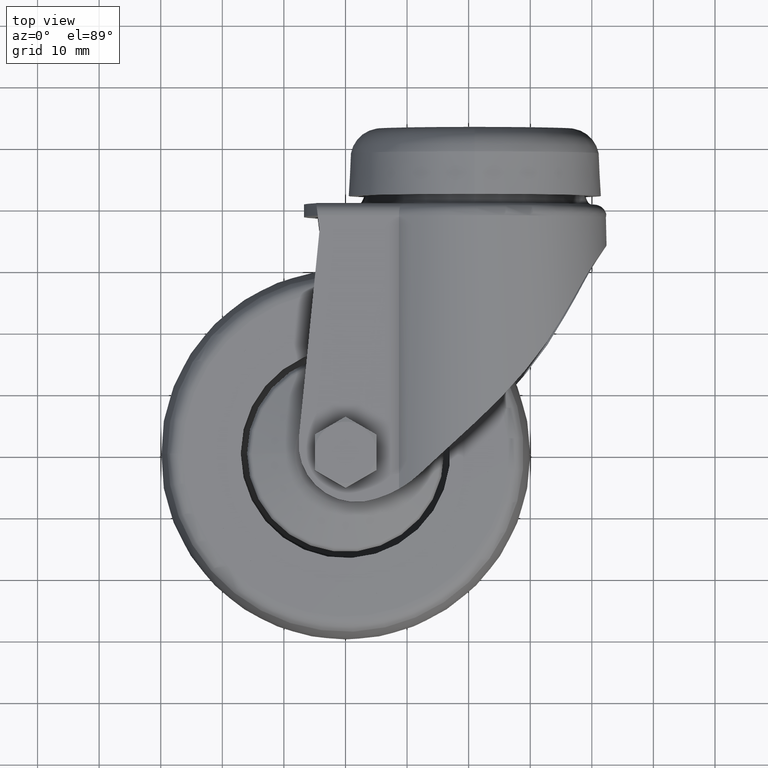
[diagram: clean part render]
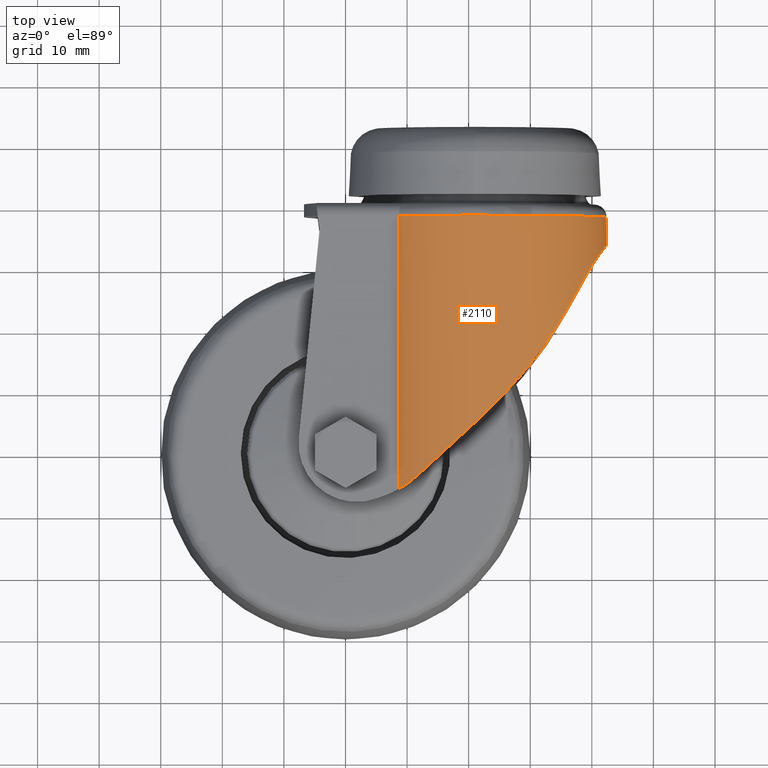
[diagram: same view with one face highlighted and labeled with its STEP entity id]
A machine part, top view. The second image highlights one B-rep face of the part: STEP entity #2110.
In plain terms, the highlighted cylindrical surface (partial cylindrical patch) has radius 21.4 mm, axis along (0, 1, 0).
Its self-contained STEP definition (entity closure, byte-faithful):
#95=B_SPLINE_CURVE_WITH_KNOTS('',3,(#3758,#3759,#3760,#3761,#3762,#3763),
 .UNSPECIFIED.,.F.,.F.,(4,2,4),(13.159844562633,13.4673430637758,13.5940150541352),
 .UNSPECIFIED.);
#96=B_SPLINE_CURVE_WITH_KNOTS('',3,(#3767,#3768,#3769,#3770,#3771,#3772),
 .UNSPECIFIED.,.F.,.F.,(4,2,4),(2.01422650775472,2.14089849811414,2.44839699925693),
 .UNSPECIFIED.);
#97=B_SPLINE_CURVE_WITH_KNOTS('',3,(#3796,#3797,#3798,#3799,#3800,#3801,
#3802,#3803),.UNSPECIFIED.,.F.,.F.,(4,2,2,4),(-5.30347207072453,-4.9293406964615,
-4.24946992960912,-3.58438395109433),.UNSPECIFIED.);
#98=B_SPLINE_CURVE_WITH_KNOTS('',3,(#3805,#3806,#3807,#3808,#3809,#3810),
 .UNSPECIFIED.,.F.,.F.,(4,2,4),(-6.02019847097043,-4.8982829966699,-4.7622575854947),
 .UNSPECIFIED.);
#99=B_SPLINE_CURVE_WITH_KNOTS('',3,(#3812,#3813,#3814,#3815,#3816,#3817,
#3818,#3819,#3820,#3821,#3822,#3823,#3824,#3825),.UNSPECIFIED.,.F.,.F.,
(4,2,2,2,2,2,4),(-7.655631086912,-7.2114884404188,-6.74464892293105,-6.27780940544331,
-5.81096988795556,-5.34413037046781,-4.89998772397461),.UNSPECIFIED.);
#100=B_SPLINE_CURVE_WITH_KNOTS('',3,(#3827,#3828,#3829,#3830,#3831,#3832),
 .UNSPECIFIED.,.F.,.F.,(4,2,4),(-10.1889680806466,-10.0529426694714,-8.93102719517088),
 .UNSPECIFIED.);
#101=B_SPLINE_CURVE_WITH_KNOTS('',3,(#3833,#3834,#3835,#3836,#3837,#3838,
#3839,#3840),.UNSPECIFIED.,.F.,.F.,(4,2,2,4),(-12.802361108636,-12.1372751301213,
-11.4574043632689,-11.0832729890058),.UNSPECIFIED.);
#114=ELLIPSE('',#2552,29.051900894958,21.4);
#115=ELLIPSE('',#2556,29.051900894958,21.4);
#150=CYLINDRICAL_SURFACE('',#2557,21.4);
#319=FACE_OUTER_BOUND('',#476,.T.);
#476=EDGE_LOOP('',(#1561,#1562,#1563,#1564,#1565,#1566,#1567,#1568,#1569,
#1570,#1571,#1572));
#613=LINE('',#3642,#692);
#629=LINE('',#3793,#708);
#692=VECTOR('',#2942,1000.);
#708=VECTOR('',#3012,1000.);
#812=CIRCLE('',#2558,21.4);
#943=VERTEX_POINT('',#3639);
#944=VERTEX_POINT('',#3641);
#971=VERTEX_POINT('',#3756);
#972=VERTEX_POINT('',#3765);
#973=VERTEX_POINT('',#3766);
#976=VERTEX_POINT('',#3780);
#978=VERTEX_POINT('',#3788);
#979=VERTEX_POINT('',#3792);
#980=VERTEX_POINT('',#3795);
#981=VERTEX_POINT('',#3804);
#982=VERTEX_POINT('',#3811);
#983=VERTEX_POINT('',#3826);
#1150=EDGE_CURVE('',#943,#944,#613,.F.);
#1182=EDGE_CURVE('',#971,#943,#95,.T.);
#1183=EDGE_CURVE('',#972,#973,#96,.T.);
#1189=EDGE_CURVE('',#976,#973,#114,.F.);
#1193=EDGE_CURVE('',#971,#978,#115,.F.);
#1194=EDGE_CURVE('',#979,#972,#629,.T.);
#1195=EDGE_CURVE('',#979,#944,#812,.T.);
#1196=EDGE_CURVE('',#980,#978,#97,.T.);
#1197=EDGE_CURVE('',#981,#980,#98,.T.);
#1198=EDGE_CURVE('',#981,#982,#99,.T.);
#1199=EDGE_CURVE('',#983,#982,#100,.T.);
#1200=EDGE_CURVE('',#976,#983,#101,.T.);
#1561=ORIENTED_EDGE('',*,*,#1194,.F.);
#1562=ORIENTED_EDGE('',*,*,#1195,.T.);
#1563=ORIENTED_EDGE('',*,*,#1150,.F.);
#1564=ORIENTED_EDGE('',*,*,#1182,.F.);
#1565=ORIENTED_EDGE('',*,*,#1193,.T.);
#1566=ORIENTED_EDGE('',*,*,#1196,.F.);
#1567=ORIENTED_EDGE('',*,*,#1197,.F.);
#1568=ORIENTED_EDGE('',*,*,#1198,.T.);
#1569=ORIENTED_EDGE('',*,*,#1199,.F.);
#1570=ORIENTED_EDGE('',*,*,#1200,.F.);
#1571=ORIENTED_EDGE('',*,*,#1189,.T.);
#1572=ORIENTED_EDGE('',*,*,#1183,.F.);
#2110=ADVANCED_FACE('',(#319),#150,.T.);
#2552=AXIS2_PLACEMENT_3D('',#3782,#2998,#2999);
#2556=AXIS2_PLACEMENT_3D('',#3790,#3008,#3009);
#2557=AXIS2_PLACEMENT_3D('',#3791,#3010,#3011);
#2558=AXIS2_PLACEMENT_3D('',#3794,#3013,#3014);
#2942=DIRECTION('',(0.,-1.,0.));
#2998=DIRECTION('center_axis',(0.676314784341893,-0.736612728969965,0.));
#2999=DIRECTION('ref_axis',(-0.736612728969965,-0.676314784341893,0.));
#3008=DIRECTION('center_axis',(0.676314784341893,-0.736612728969965,0.));
#3009=DIRECTION('ref_axis',(-0.736612728969965,-0.676314784341893,0.));
#3010=DIRECTION('center_axis',(0.,1.,0.));
#3011=DIRECTION('ref_axis',(1.,0.,-6.12323399573677E-17));
#3012=DIRECTION('',(0.,-1.,0.));
#3013=DIRECTION('center_axis',(0.,-1.,0.));
#3014=DIRECTION('ref_axis',(0.,0.,-1.));
#3639=CARTESIAN_POINT('',(8.68293866216459,-5.85453244256218,17.5));
#3641=CARTESIAN_POINT('',(8.68293866216459,38.5399999999999,17.5));
#3642=CARTESIAN_POINT('',(8.68293866216459,46.47,17.5));
#3756=CARTESIAN_POINT('',(12.0700000000002,-3.37899999999986,19.4477530835828));
#3758=CARTESIAN_POINT('Ctrl Pts',(12.0700000000002,-3.37899999999983,19.4477530835828));
#3759=CARTESIAN_POINT('Ctrl Pts',(11.3384994650025,-4.05678881689918,19.1118633923956));
#3760=CARTESIAN_POINT('Ctrl Pts',(10.5237549288839,-4.69319662743553,18.6855384315071));
#3761=CARTESIAN_POINT('Ctrl Pts',(9.36057593138941,-5.45666135645005,17.9622800765053));
#3762=CARTESIAN_POINT('Ctrl Pts',(9.01970207602005,-5.66394487614141,17.7370248928455));
#3763=CARTESIAN_POINT('Ctrl Pts',(8.68293866216459,-5.85453244256218,17.5));
#3765=CARTESIAN_POINT('',(8.68293866216459,-5.85453244256219,-17.5));
#3766=CARTESIAN_POINT('',(12.0700000000002,-3.37899999999986,-19.4477530835828));
#3767=CARTESIAN_POINT('Ctrl Pts',(8.68293866216458,-5.85453244256218,-17.5));
#3768=CARTESIAN_POINT('Ctrl Pts',(9.01970207602005,-5.6639448761414,-17.7370248928455));
#3769=CARTESIAN_POINT('Ctrl Pts',(9.36057593138942,-5.45666135645005,-17.9622800765053));
#3770=CARTESIAN_POINT('Ctrl Pts',(10.5237549288839,-4.69319662743553,-18.6855384315071));
#3771=CARTESIAN_POINT('Ctrl Pts',(11.3384994650025,-4.05678881689917,-19.1118633923956));
#3772=CARTESIAN_POINT('Ctrl Pts',(12.0700000000002,-3.37899999999982,-19.4477530835828));
#3780=CARTESIAN_POINT('',(21.1099999999999,4.92099999999993,-21.3997172878522));
#3782=CARTESIAN_POINT('Origin',(21.,4.82000442477876,0.));
#3788=CARTESIAN_POINT('',(21.1099999999999,4.92099999999993,21.3997172878522));
#3790=CARTESIAN_POINT('Origin',(21.,4.82000442477876,0.));
#3791=CARTESIAN_POINT('Origin',(21.,46.47,0.));
#3792=CARTESIAN_POINT('',(8.68293866216459,38.5399999999999,-17.5));
#3793=CARTESIAN_POINT('',(8.68293866216459,46.47,-17.5));
#3794=CARTESIAN_POINT('Origin',(21.,38.5399999999999,0.));
#3795=CARTESIAN_POINT('',(32.7795197701577,18.1503066436,17.8662506974592));
#3796=CARTESIAN_POINT('Ctrl Pts',(32.7795197701578,18.1503066435999,17.8662506974592));
#3797=CARTESIAN_POINT('Ctrl Pts',(32.064152971704,17.123193884257,18.3379040671558));
#3798=CARTESIAN_POINT('Ctrl Pts',(31.3120737519927,16.0968783999334,18.7720194954028));
#3799=CARTESIAN_POINT('Ctrl Pts',(29.1020329504754,13.2354905778588,19.870873889576));
#3800=CARTESIAN_POINT('Ctrl Pts',(27.5675866158982,11.4244965198949,20.433931112447));
#3801=CARTESIAN_POINT('Ctrl Pts',(24.3946834852453,8.01228326360735,21.190514351126));
#3802=CARTESIAN_POINT('Ctrl Pts',(22.7591616292724,6.40725612755577,21.3912401768334));
#3803=CARTESIAN_POINT('Ctrl Pts',(21.1099999999999,4.92099999999988,21.3997172878522));
#3804=CARTESIAN_POINT('',(38.7884849647765,28.3920001140622,11.8966298865654));
#3805=CARTESIAN_POINT('Ctrl Pts',(38.788484964776,28.392000114063,11.8966298865661));
#3806=CARTESIAN_POINT('Ctrl Pts',(37.3255564628161,25.6684457715418,14.0840797702548));
#3807=CARTESIAN_POINT('Ctrl Pts',(35.5253599944926,22.5233990212647,15.9090644536892));
#3808=CARTESIAN_POINT('Ctrl Pts',(33.274830801336,18.9297941727888,17.5322147407366));
#3809=CARTESIAN_POINT('Ctrl Pts',(33.0285061462618,18.5402403903643,17.7020897893044));
#3810=CARTESIAN_POINT('Ctrl Pts',(32.7795197701572,18.1503066436005,17.8662506974596));
#3811=CARTESIAN_POINT('',(38.7884849647765,28.3920001140622,-11.8966298865654));
#3812=CARTESIAN_POINT('Ctrl Pts',(38.7884849647765,28.3920001140622,11.8966298865654));
#3813=CARTESIAN_POINT('Ctrl Pts',(39.3577084548446,29.4327741481987,11.0454961124443));
#3814=CARTESIAN_POINT('Ctrl Pts',(39.9230062565524,30.3682057710757,10.0708296597483));
#3815=CARTESIAN_POINT('Ctrl Pts',(40.987286244169,32.0218981173646,7.75704637269081));
#3816=CARTESIAN_POINT('Ctrl Pts',(41.5075031827322,32.7631075922985,6.31907166499945));
#3817=CARTESIAN_POINT('Ctrl Pts',(42.2162065765666,33.7405850293505,3.21885494001732));
#3818=CARTESIAN_POINT('Ctrl Pts',(42.4,33.9787228168666,1.55613172495916));
#3819=CARTESIAN_POINT('Ctrl Pts',(42.4,33.9787228168666,-1.55613172495916));
#3820=CARTESIAN_POINT('Ctrl Pts',(42.2162065765666,33.7405850293505,-3.21885494001732));
#3821=CARTESIAN_POINT('Ctrl Pts',(41.5075031827322,32.7631075922985,-6.31907166499945));
#3822=CARTESIAN_POINT('Ctrl Pts',(40.987286244169,32.0218981173646,-7.75704637269081));
#3823=CARTESIAN_POINT('Ctrl Pts',(39.9230062565524,30.3682057710757,-10.0708296597483));
#3824=CARTESIAN_POINT('Ctrl Pts',(39.3577084548446,29.4327741481987,-11.0454961124443));
#3825=CARTESIAN_POINT('Ctrl Pts',(38.7884849647765,28.3920001140622,-11.8966298865654));
#3826=CARTESIAN_POINT('',(32.7795197701577,18.1503066436,-17.8662506974592));
#3827=CARTESIAN_POINT('Ctrl Pts',(32.7795197701572,18.1503066436005,-17.8662506974596));
#3828=CARTESIAN_POINT('Ctrl Pts',(33.0285061462618,18.5402403903643,-17.7020897893044));
#3829=CARTESIAN_POINT('Ctrl Pts',(33.274830801336,18.9297941727888,-17.5322147407366));
#3830=CARTESIAN_POINT('Ctrl Pts',(35.5253599944926,22.5233990212647,-15.9090644536892));
#3831=CARTESIAN_POINT('Ctrl Pts',(37.3255564628161,25.6684457715418,-14.0840797702548));
#3832=CARTESIAN_POINT('Ctrl Pts',(38.788484964776,28.392000114063,-11.8966298865661));
#3833=CARTESIAN_POINT('Ctrl Pts',(21.1099999999999,4.92099999999989,-21.3997172878522));
#3834=CARTESIAN_POINT('Ctrl Pts',(22.7591616292725,6.40725612755578,-21.3912401768334));
#3835=CARTESIAN_POINT('Ctrl Pts',(24.3946834852453,8.01228326360735,-21.190514351126));
#3836=CARTESIAN_POINT('Ctrl Pts',(27.5675866158982,11.4244965198949,-20.433931112447));
#3837=CARTESIAN_POINT('Ctrl Pts',(29.1020329504754,13.2354905778588,-19.870873889576));
#3838=CARTESIAN_POINT('Ctrl Pts',(31.3120737519927,16.0968783999334,-18.7720194954028));
#3839=CARTESIAN_POINT('Ctrl Pts',(32.064152971704,17.123193884257,-18.3379040671558));
#3840=CARTESIAN_POINT('Ctrl Pts',(32.7795197701578,18.1503066435999,-17.8662506974592));